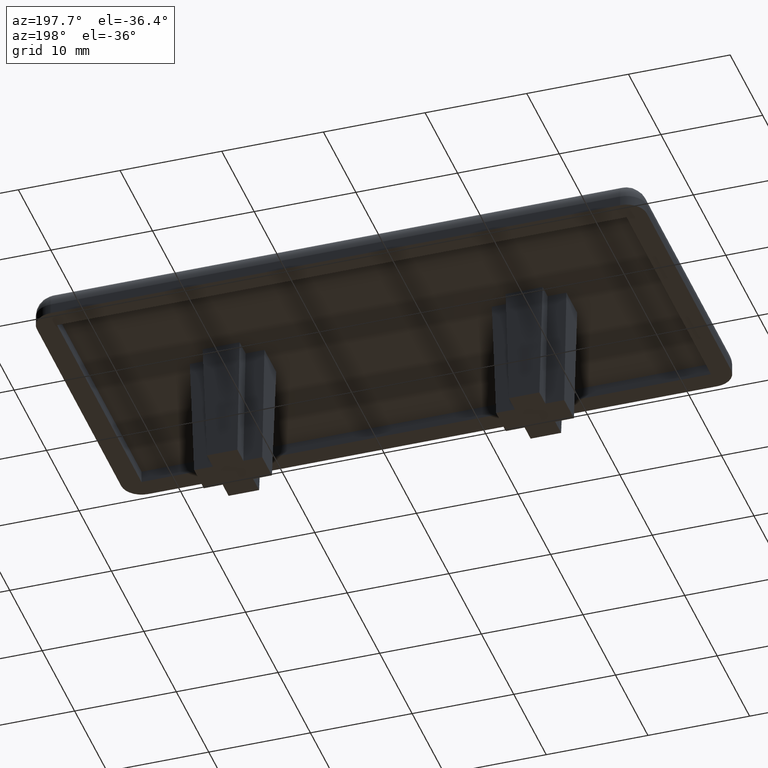
[diagram: clean part render]
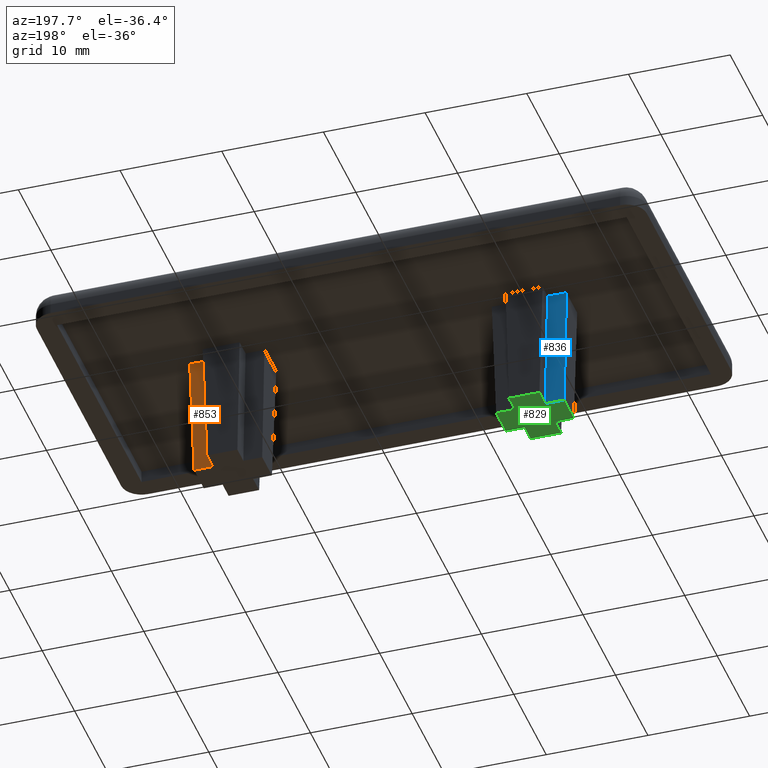
[diagram: same view with three faces highlighted in distinct colors, each labeled with its STEP entity id]
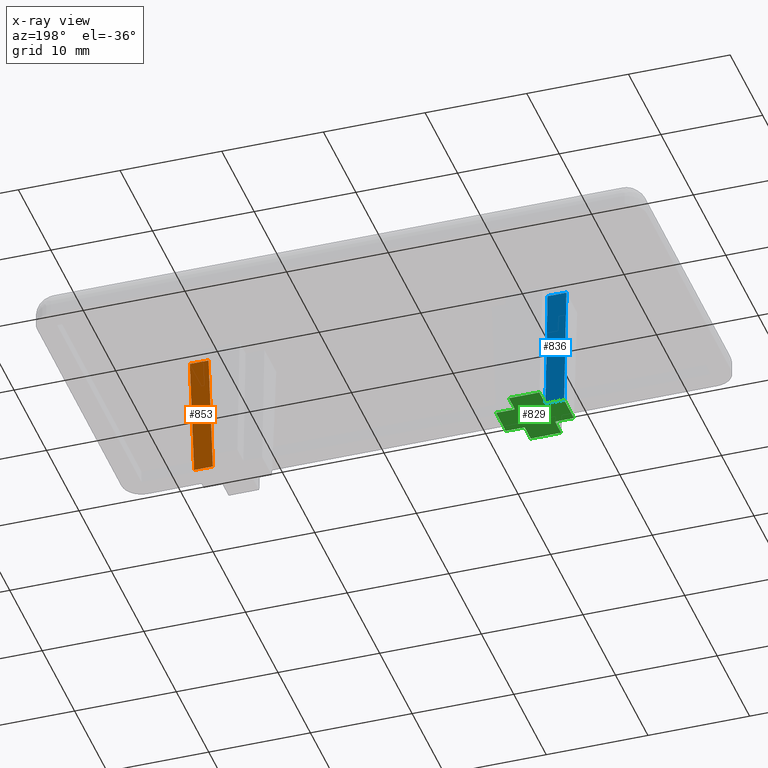
[diagram: x-ray of the same camera — body ghosted, the three highlighted faces saturated]
A machine part, auxiliary view with three faces highlighted in distinct colors.
The next image is the same camera in x-ray (body ghosted, the three faces saturated) — at least one of them is partly hidden behind the body in this view.
Their STEP definitions:

[orange] entity #853 — the highlighted planar face has unit normal (0, 0.9997, -0.0262).
#71=FACE_OUTER_BOUND('',#120,.T.);
#120=EDGE_LOOP('',(#667,#668,#669,#670));
#147=LINE('',#1184,#251);
#195=LINE('',#1281,#299);
#217=LINE('',#1324,#321);
#218=LINE('',#1326,#322);
#251=VECTOR('',#948,1.85);
#299=VECTOR('',#1024,12.2083627041776);
#321=VECTOR('',#1066,12.2083627041776);
#322=VECTOR('',#1069,1.85);
#355=VERTEX_POINT('',#1182);
#356=VERTEX_POINT('',#1183);
#391=VERTEX_POINT('',#1280);
#402=VERTEX_POINT('',#1322);
#431=EDGE_CURVE('',#355,#356,#147,.T.);
#479=EDGE_CURVE('',#356,#391,#195,.F.);
#501=EDGE_CURVE('',#402,#355,#217,.F.);
#502=EDGE_CURVE('',#402,#391,#218,.T.);
#667=ORIENTED_EDGE('',*,*,#501,.F.);
#668=ORIENTED_EDGE('',*,*,#502,.T.);
#669=ORIENTED_EDGE('',*,*,#479,.F.);
#670=ORIENTED_EDGE('',*,*,#431,.F.);
#816=PLANE('',#904);
#853=ADVANCED_FACE('',(#71),#816,.T.);
#904=AXIS2_PLACEMENT_3D('',#1325,#1067,#1068);
#948=DIRECTION('',(1.,0.,0.));
#1024=DIRECTION('',(-0.0261679842649793,-0.0261679842649793,-0.99931500198837));
#1066=DIRECTION('',(0.0261679842649793,0.0261679842649793,0.99931500198837));
#1067=DIRECTION('center_axis',(0.,0.999657324975557,-0.0261769483078732));
#1068=DIRECTION('ref_axis',(-1.,0.,0.));
#1069=DIRECTION('',(1.,0.,0.));
#1182=CARTESIAN_POINT('',(16.35,1.5,-11.));
#1183=CARTESIAN_POINT('',(18.2,1.5,-11.));
#1184=CARTESIAN_POINT('',(18.2,1.5,-11.));
#1280=CARTESIAN_POINT('',(18.5194682431441,1.81946824314408,1.2));
#1281=CARTESIAN_POINT('',(18.4867221111084,1.78672211110835,-0.0505243303815032));
#1322=CARTESIAN_POINT('',(16.6694682431441,1.81946824314408,1.2));
#1324=CARTESIAN_POINT('',(16.6383826623545,1.78838266235454,0.0128895632943866));
#1325=CARTESIAN_POINT('Origin',(18.2,1.7879464313866,-0.00376942526886945));
#1326=CARTESIAN_POINT('',(9.1,1.81946824314408,1.2));

[blue] entity #836 — the highlighted planar face has unit normal (0, 0.9997, -0.0262).
#54=FACE_OUTER_BOUND('',#103,.T.);
#103=EDGE_LOOP('',(#599,#600,#601,#602));
#166=LINE('',#1223,#270);
#183=LINE('',#1256,#287);
#184=LINE('',#1259,#288);
#185=LINE('',#1260,#289);
#270=VECTOR('',#969,1.85);
#287=VECTOR('',#998,12.2083627041776);
#288=VECTOR('',#1001,1.85);
#289=VECTOR('',#1002,12.2083627041776);
#374=VERTEX_POINT('',#1220);
#375=VERTEX_POINT('',#1222);
#385=VERTEX_POINT('',#1254);
#386=VERTEX_POINT('',#1258);
#450=EDGE_CURVE('',#374,#375,#166,.T.);
#467=EDGE_CURVE('',#385,#374,#183,.T.);
#468=EDGE_CURVE('',#385,#386,#184,.T.);
#469=EDGE_CURVE('',#386,#375,#185,.F.);
#599=ORIENTED_EDGE('',*,*,#467,.F.);
#600=ORIENTED_EDGE('',*,*,#468,.T.);
#601=ORIENTED_EDGE('',*,*,#469,.T.);
#602=ORIENTED_EDGE('',*,*,#450,.F.);
#799=PLANE('',#887);
#836=ADVANCED_FACE('',(#54),#799,.T.);
#887=AXIS2_PLACEMENT_3D('',#1257,#999,#1000);
#969=DIRECTION('',(1.,0.,0.));
#998=DIRECTION('',(0.0261679842649793,-0.0261679842649793,-0.99931500198837));
#999=DIRECTION('center_axis',(0.,0.999657324975557,-0.0261769483078732));
#1000=DIRECTION('ref_axis',(-1.,0.,0.));
#1001=DIRECTION('',(1.,0.,0.));
#1002=DIRECTION('',(-0.0261679842649793,0.0261679842649793,0.99931500198837));
#1220=CARTESIAN_POINT('',(-18.2,1.5,-11.));
#1222=CARTESIAN_POINT('',(-16.35,1.5,-11.));
#1223=CARTESIAN_POINT('',(-16.35,1.5,-11.));
#1254=CARTESIAN_POINT('',(-18.5194682431441,1.81946824314408,1.2));
#1256=CARTESIAN_POINT('',(-18.4871158500636,1.78711585006363,-0.0354880463140243));
#1257=CARTESIAN_POINT('Origin',(-16.35,1.7879464313866,-0.00376942526886945));
#1258=CARTESIAN_POINT('',(-16.6694682431441,1.81946824314408,1.2));
#1259=CARTESIAN_POINT('',(-8.175,1.81946824314408,1.2));
#1260=CARTESIAN_POINT('',(-16.6383826623545,1.78838266235454,0.0128895632943866));

[green] entity #829 — the highlighted planar face has unit normal (0, 0, -1).
#47=FACE_OUTER_BOUND('',#96,.T.);
#96=EDGE_LOOP('',(#563,#564,#565,#566,#567,#568,#569,#570,#571,#572,#573,
#574));
#159=LINE('',#1209,#263);
#160=LINE('',#1211,#264);
#161=LINE('',#1213,#265);
#162=LINE('',#1215,#266);
#163=LINE('',#1217,#267);
#164=LINE('',#1219,#268);
#165=LINE('',#1221,#269);
#166=LINE('',#1223,#270);
#167=LINE('',#1225,#271);
#168=LINE('',#1227,#272);
#169=LINE('',#1229,#273);
#170=LINE('',#1230,#274);
#263=VECTOR('',#962,3.);
#264=VECTOR('',#963,1.85);
#265=VECTOR('',#964,1.85);
#266=VECTOR('',#965,3.);
#267=VECTOR('',#966,1.85);
#268=VECTOR('',#967,1.85);
#269=VECTOR('',#968,3.);
#270=VECTOR('',#969,1.85);
#271=VECTOR('',#970,1.85);
#272=VECTOR('',#971,3.);
#273=VECTOR('',#972,1.85);
#274=VECTOR('',#973,1.85);
#367=VERTEX_POINT('',#1207);
#368=VERTEX_POINT('',#1208);
#369=VERTEX_POINT('',#1210);
#370=VERTEX_POINT('',#1212);
#371=VERTEX_POINT('',#1214);
#372=VERTEX_POINT('',#1216);
#373=VERTEX_POINT('',#1218);
#374=VERTEX_POINT('',#1220);
#375=VERTEX_POINT('',#1222);
#376=VERTEX_POINT('',#1224);
#377=VERTEX_POINT('',#1226);
#378=VERTEX_POINT('',#1228);
#443=EDGE_CURVE('',#367,#368,#159,.T.);
#444=EDGE_CURVE('',#368,#369,#160,.T.);
#445=EDGE_CURVE('',#369,#370,#161,.T.);
#446=EDGE_CURVE('',#370,#371,#162,.T.);
#447=EDGE_CURVE('',#371,#372,#163,.T.);
#448=EDGE_CURVE('',#372,#373,#164,.T.);
#449=EDGE_CURVE('',#373,#374,#165,.T.);
#450=EDGE_CURVE('',#374,#375,#166,.T.);
#451=EDGE_CURVE('',#375,#376,#167,.T.);
#452=EDGE_CURVE('',#376,#377,#168,.T.);
#453=EDGE_CURVE('',#377,#378,#169,.T.);
#454=EDGE_CURVE('',#378,#367,#170,.T.);
#563=ORIENTED_EDGE('',*,*,#443,.T.);
#564=ORIENTED_EDGE('',*,*,#444,.T.);
#565=ORIENTED_EDGE('',*,*,#445,.T.);
#566=ORIENTED_EDGE('',*,*,#446,.T.);
#567=ORIENTED_EDGE('',*,*,#447,.T.);
#568=ORIENTED_EDGE('',*,*,#448,.T.);
#569=ORIENTED_EDGE('',*,*,#449,.T.);
#570=ORIENTED_EDGE('',*,*,#450,.T.);
#571=ORIENTED_EDGE('',*,*,#451,.T.);
#572=ORIENTED_EDGE('',*,*,#452,.T.);
#573=ORIENTED_EDGE('',*,*,#453,.T.);
#574=ORIENTED_EDGE('',*,*,#454,.T.);
#792=PLANE('',#880);
#829=ADVANCED_FACE('',(#47),#792,.T.);
#880=AXIS2_PLACEMENT_3D('',#1206,#960,#961);
#960=DIRECTION('center_axis',(0.,0.,-1.));
#961=DIRECTION('ref_axis',(-1.,0.,0.));
#962=DIRECTION('',(7.40148683083437E-16,-1.,0.));
#963=DIRECTION('',(-1.,9.00180830777153E-16,0.));
#964=DIRECTION('',(0.,-1.,0.));
#965=DIRECTION('',(-1.,0.,0.));
#966=DIRECTION('',(0.,1.,0.));
#967=DIRECTION('',(-1.,0.,0.));
#968=DIRECTION('',(0.,1.,0.));
#969=DIRECTION('',(1.,0.,0.));
#970=DIRECTION('',(0.,1.,0.));
#971=DIRECTION('',(1.,0.,0.));
#972=DIRECTION('',(0.,-1.,0.));
#973=DIRECTION('',(1.,9.00180830777154E-16,0.));
#1206=CARTESIAN_POINT('Origin',(-14.85,-2.77555756156289E-16,-11.));
#1207=CARTESIAN_POINT('',(-11.5,1.5,-11.));
#1208=CARTESIAN_POINT('',(-11.5,-1.5,-11.));
#1209=CARTESIAN_POINT('',(-11.5,-1.5,-11.));
#1210=CARTESIAN_POINT('',(-13.35,-1.5,-11.));
#1211=CARTESIAN_POINT('',(-13.35,-1.5,-11.));
#1212=CARTESIAN_POINT('',(-13.35,-3.35,-11.));
#1213=CARTESIAN_POINT('',(-13.35,-3.35,-11.));
#1214=CARTESIAN_POINT('',(-16.35,-3.35,-11.));
#1215=CARTESIAN_POINT('',(-16.35,-3.35,-11.));
#1216=CARTESIAN_POINT('',(-16.35,-1.5,-11.));
#1217=CARTESIAN_POINT('',(-16.35,-1.5,-11.));
#1218=CARTESIAN_POINT('',(-18.2,-1.5,-11.));
#1219=CARTESIAN_POINT('',(-18.2,-1.5,-11.));
#1220=CARTESIAN_POINT('',(-18.2,1.5,-11.));
#1221=CARTESIAN_POINT('',(-18.2,1.5,-11.));
#1222=CARTESIAN_POINT('',(-16.35,1.5,-11.));
#1223=CARTESIAN_POINT('',(-16.35,1.5,-11.));
#1224=CARTESIAN_POINT('',(-16.35,3.35,-11.));
#1225=CARTESIAN_POINT('',(-16.35,3.35,-11.));
#1226=CARTESIAN_POINT('',(-13.35,3.35,-11.));
#1227=CARTESIAN_POINT('',(-13.35,3.35,-11.));
#1228=CARTESIAN_POINT('',(-13.35,1.5,-11.));
#1229=CARTESIAN_POINT('',(-13.35,1.5,-11.));
#1230=CARTESIAN_POINT('',(-11.5,1.5,-11.));